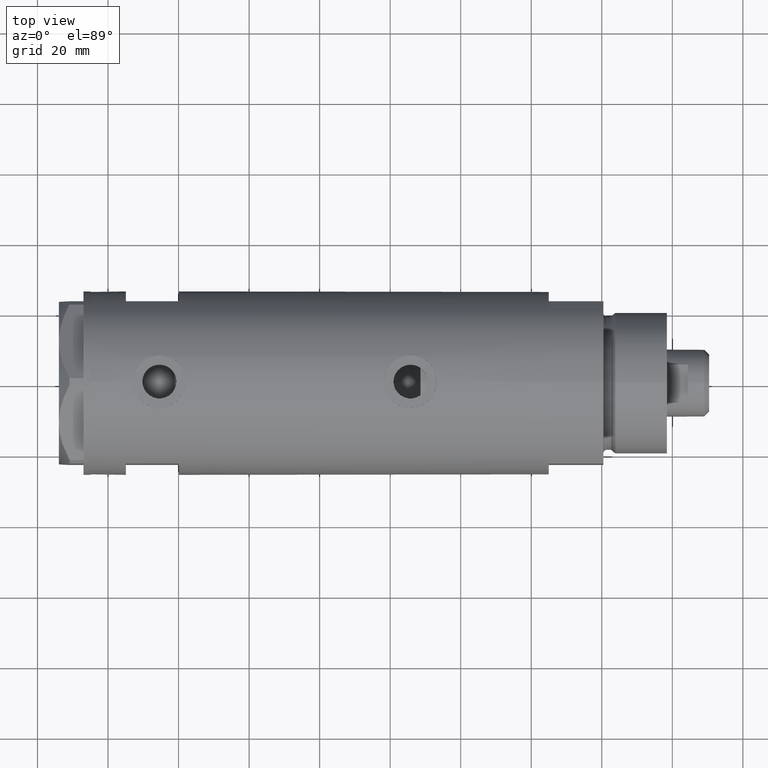
[diagram: clean part render]
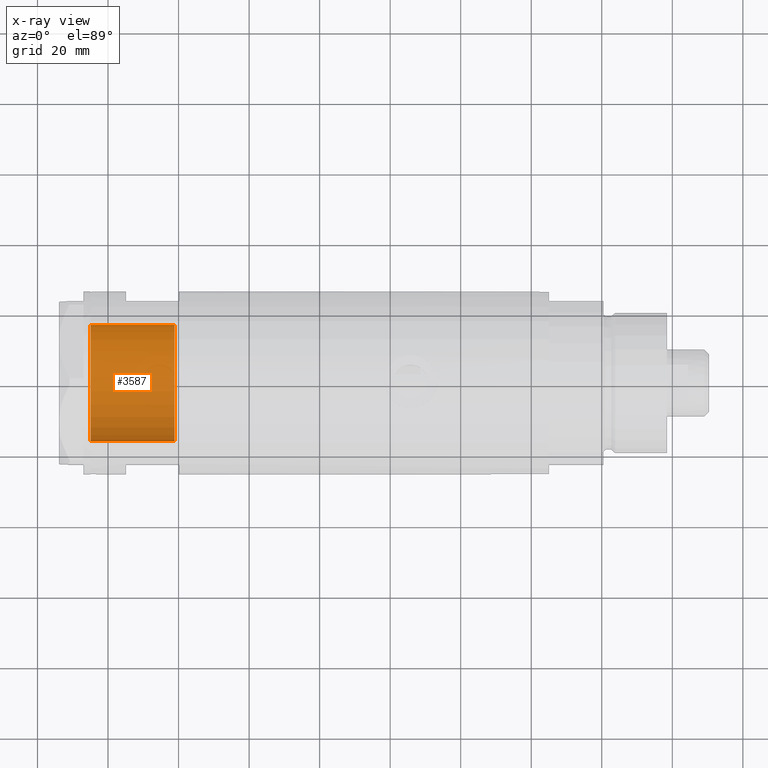
[diagram: x-ray — body ghosted, one internal face saturated and labeled with its STEP entity id]
A machine part, top view, then the same camera in x-ray: the body is ghosted and one INTERNAL B-rep face — a face not visible from any outside direction — is saturated and labeled: STEP entity #3587.
In plain terms, the highlighted cylindrical surface (partial cylindrical patch) has radius 16.5 mm, axis along (-1, -0, 0).
Its self-contained STEP definition (entity closure, byte-faithful):
#1 = CARTESIAN_POINT ( 'NONE',  ( -16.50000000000000000, 2.020667218593133100E-15, -25.80000000000000426 ) ) ;
#32 = CARTESIAN_POINT ( 'NONE',  ( 0.000000000000000000, 0.000000000000000000, -25.80000000000000426 ) ) ;
#477 = EDGE_CURVE ( 'NONE', #2914, #4124, #5025, .T. ) ;
#908 = AXIS2_PLACEMENT_3D ( 'NONE', #1006, #918, #2420 ) ;
#918 = DIRECTION ( 'NONE',  ( 0.000000000000000000, 0.000000000000000000, -1.000000000000000000 ) ) ;
#954 = CARTESIAN_POINT ( 'NONE',  ( -16.50000000000000000, 2.020667218593133100E-15, -2.000000000000000000 ) ) ;
#1006 = CARTESIAN_POINT ( 'NONE',  ( 0.000000000000000000, 0.000000000000000000, -2.000000000000000000 ) ) ;
#1270 = CARTESIAN_POINT ( 'NONE',  ( 0.000000000000000000, 0.000000000000000000, -25.80000000000000426 ) ) ;
#1369 = VECTOR ( 'NONE', #1482, 1000.000000000000000 ) ;
#1446 = DIRECTION ( 'NONE',  ( -1.000000000000000000, 0.000000000000000000, 0.000000000000000000 ) ) ;
#1482 = DIRECTION ( 'NONE',  ( -0.000000000000000000, -0.000000000000000000, 1.000000000000000000 ) ) ;
#1763 = AXIS2_PLACEMENT_3D ( 'NONE', #1270, #3639, #2722 ) ;
#1863 = CIRCLE ( 'NONE', #1966, 16.50000000000000000 ) ;
#1910 = DIRECTION ( 'NONE',  ( 0.000000000000000000, 0.000000000000000000, -1.000000000000000000 ) ) ;
#1966 = AXIS2_PLACEMENT_3D ( 'NONE', #32, #1910, #1446 ) ;
#2190 = EDGE_LOOP ( 'NONE', ( #5219, #4707, #5347, #4956 ) ) ;
#2339 = CARTESIAN_POINT ( 'NONE',  ( 16.50000000000000000, 0.000000000000000000, -25.80000000000000426 ) ) ;
#2397 = EDGE_CURVE ( 'NONE', #2914, #5964, #1863, .T. ) ;
#2420 = DIRECTION ( 'NONE',  ( -1.000000000000000000, 0.000000000000000000, 0.000000000000000000 ) ) ;
#2722 = DIRECTION ( 'NONE',  ( 1.000000000000000000, 0.000000000000000000, 0.000000000000000000 ) ) ;
#2900 = LINE ( 'NONE', #2339, #1369 ) ;
#2914 = VERTEX_POINT ( 'NONE', #1 ) ;
#3541 = VECTOR ( 'NONE', #5078, 1000.000000000000000 ) ;
#3587 = ADVANCED_FACE ( 'NONE', ( #4239 ), #5180, .T. ) ;
#3639 = DIRECTION ( 'NONE',  ( -0.000000000000000000, -0.000000000000000000, 1.000000000000000000 ) ) ;
#3718 = EDGE_CURVE ( 'NONE', #5964, #4604, #2900, .T. ) ;
#3897 = CIRCLE ( 'NONE', #908, 16.50000000000000000 ) ;
#4057 = CARTESIAN_POINT ( 'NONE',  ( -16.50000000000000000, 2.020667218593133100E-15, -25.80000000000000426 ) ) ;
#4124 = VERTEX_POINT ( 'NONE', #954 ) ;
#4194 = CARTESIAN_POINT ( 'NONE',  ( 16.50000000000000000, 0.000000000000000000, -25.80000000000000426 ) ) ;
#4239 = FACE_OUTER_BOUND ( 'NONE', #2190, .T. ) ;
#4604 = VERTEX_POINT ( 'NONE', #4818 ) ;
#4707 = ORIENTED_EDGE ( 'NONE', *, *, #477, .T. ) ;
#4818 = CARTESIAN_POINT ( 'NONE',  ( 16.50000000000000000, 0.000000000000000000, -2.000000000000000000 ) ) ;
#4956 = ORIENTED_EDGE ( 'NONE', *, *, #3718, .F. ) ;
#5025 = LINE ( 'NONE', #4057, #3541 ) ;
#5078 = DIRECTION ( 'NONE',  ( -0.000000000000000000, -0.000000000000000000, 1.000000000000000000 ) ) ;
#5180 = CYLINDRICAL_SURFACE ( 'NONE', #1763, 16.50000000000000000 ) ;
#5219 = ORIENTED_EDGE ( 'NONE', *, *, #2397, .F. ) ;
#5347 = ORIENTED_EDGE ( 'NONE', *, *, #6076, .T. ) ;
#5964 = VERTEX_POINT ( 'NONE', #4194 ) ;
#6076 = EDGE_CURVE ( 'NONE', #4124, #4604, #3897, .T. ) ;